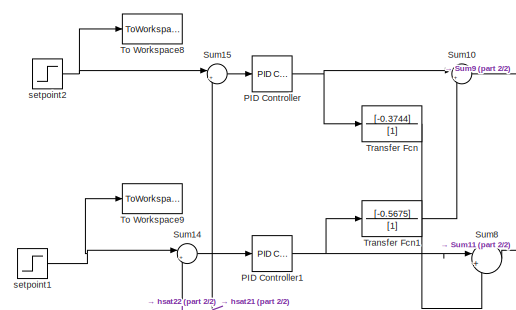
[diagram: root canvas - part 1/2, top left region]
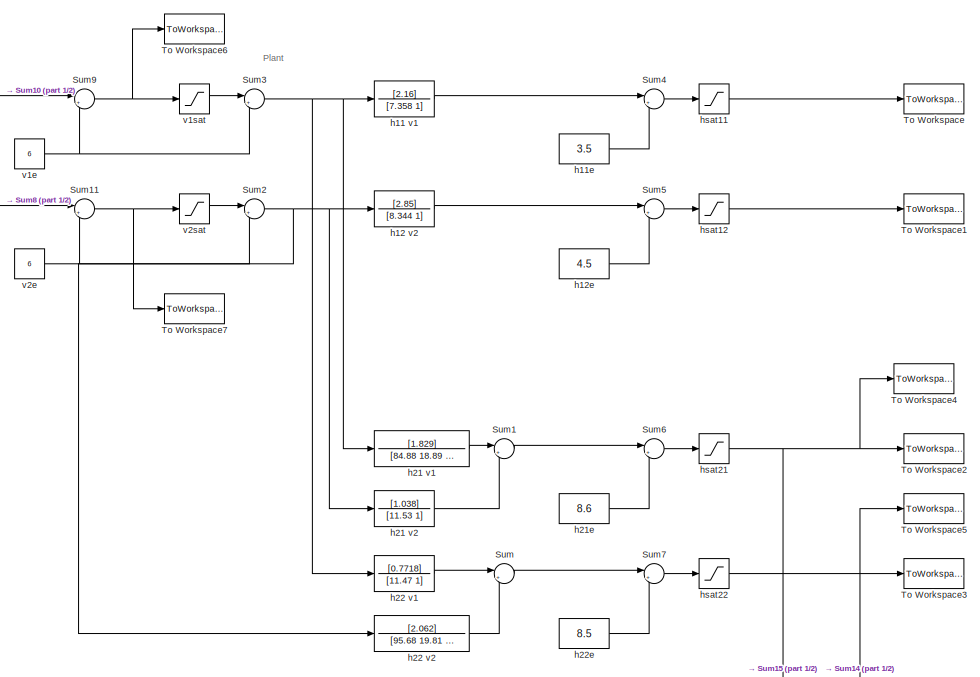
[diagram: root canvas - part 2/2, right side, full height]
MODEL slx_1b8fdc3dee98
KIND model
CONFIG AbsTol = auto
CONFIG FixedStep = auto
CONFIG MaxStep = auto
CONFIG MinStep = auto
CONFIG RelTol = 1e-3
CONFIG SampleTimeConstraint = Unconstrained
CONFIG Solver = VariableStepAuto
CONFIG SolverMode = Auto
CONFIG SolverName = VariableStepAuto
CONFIG StartTime = 0.0
CONFIG StopTime = 800
BLOCK [Reference] PID Controller  REF=simulink/Continuous/PID Controller
  Ports = [1, 1]
  SourceBlock = simulink/Continuous/PID Controller
  SourceType = PID 1dof
BLOCK [Reference] PID Controller1  REF=simulink/Continuous/PID Controller
  Ports = [1, 1]
  SourceBlock = simulink/Continuous/PID Controller
  SourceType = PID 1dof
BLOCK [Sum] Sum
  IconShape = round
  InputSameDT = off
  Inputs = |++
  OutDataTypeStr = Inherit: Inherit via internal rule
  Ports = [2, 1]
  SaturateOnIntegerOverflow = off
BLOCK [Sum] Sum1
  IconShape = round
  InputSameDT = off
  Inputs = |++
  OutDataTypeStr = Inherit: Inherit via internal rule
  Ports = [2, 1]
  SaturateOnIntegerOverflow = off
BLOCK [Sum] Sum10
  IconShape = round
  InputSameDT = off
  Inputs = |++
  OutDataTypeStr = Inherit: Inherit via internal rule
  Ports = [2, 1]
  SaturateOnIntegerOverflow = off
BLOCK [Sum] Sum11
  IconShape = round
  InputSameDT = off
  Inputs = |++
  OutDataTypeStr = Inherit: Inherit via internal rule
  Ports = [2, 1]
  SaturateOnIntegerOverflow = off
BLOCK [Sum] Sum14
  IconShape = round
  InputSameDT = off
  Inputs = |+-
  OutDataTypeStr = Inherit: Inherit via internal rule
  Ports = [2, 1]
  SaturateOnIntegerOverflow = off
BLOCK [Sum] Sum15
  IconShape = round
  InputSameDT = off
  Inputs = |+-
  OutDataTypeStr = Inherit: Inherit via internal rule
  Ports = [2, 1]
  SaturateOnIntegerOverflow = off
BLOCK [Sum] Sum2
  IconShape = round
  InputSameDT = off
  Inputs = |+-
  OutDataTypeStr = Inherit: Inherit via internal rule
  Ports = [2, 1]
  SaturateOnIntegerOverflow = off
BLOCK [Sum] Sum3
  IconShape = round
  InputSameDT = off
  Inputs = |+-
  OutDataTypeStr = Inherit: Inherit via internal rule
  Ports = [2, 1]
  SaturateOnIntegerOverflow = off
BLOCK [Sum] Sum4
  IconShape = round
  InputSameDT = off
  Inputs = |++
  OutDataTypeStr = Inherit: Inherit via internal rule
  Ports = [2, 1]
  SaturateOnIntegerOverflow = off
BLOCK [Sum] Sum5
  IconShape = round
  InputSameDT = off
  Inputs = |++
  OutDataTypeStr = Inherit: Inherit via internal rule
  Ports = [2, 1]
  SaturateOnIntegerOverflow = off
BLOCK [Sum] Sum6
  IconShape = round
  InputSameDT = off
  Inputs = |++
  OutDataTypeStr = Inherit: Inherit via internal rule
  Ports = [2, 1]
  SaturateOnIntegerOverflow = off
BLOCK [Sum] Sum7
  IconShape = round
  InputSameDT = off
  Inputs = |++
  OutDataTypeStr = Inherit: Inherit via internal rule
  Ports = [2, 1]
  SaturateOnIntegerOverflow = off
BLOCK [Sum] Sum8
  IconShape = round
  InputSameDT = off
  Inputs = |++
  OutDataTypeStr = Inherit: Inherit via internal rule
  Ports = [2, 1]
  SaturateOnIntegerOverflow = off
BLOCK [Sum] Sum9
  IconShape = round
  InputSameDT = off
  Inputs = |++
  OutDataTypeStr = Inherit: Inherit via internal rule
  Ports = [2, 1]
  SaturateOnIntegerOverflow = off
BLOCK [ToWorkspace] To Workspace
  FixptAsFi = on
  MaxDataPoints = inf
  Ports = [1]
  SampleTime = -1
  Save2DSignal = 3-D array (concatenate along third dimension)
  SaveFormat = Timeseries
  VariableName = tank11
BLOCK [ToWorkspace] To Workspace1
  FixptAsFi = on
  MaxDataPoints = inf
  Ports = [1]
  SampleTime = -1
  Save2DSignal = 3-D array (concatenate along third dimension)
  SaveFormat = Timeseries
  VariableName = tank12
BLOCK [ToWorkspace] To Workspace2
  FixptAsFi = on
  MaxDataPoints = inf
  Ports = [1]
  SampleTime = -1
  Save2DSignal = 3-D array (concatenate along third dimension)
  SaveFormat = Timeseries
  VariableName = tank21
BLOCK [ToWorkspace] To Workspace3
  FixptAsFi = on
  MaxDataPoints = inf
  Ports = [1]
  SampleTime = -1
  Save2DSignal = 3-D array (concatenate along third dimension)
  SaveFormat = Timeseries
  VariableName = tank22
BLOCK [ToWorkspace] To Workspace4
  FixptAsFi = on
  MaxDataPoints = inf
  Ports = [1]
  SampleTime = -1
  Save2DSignal = 3-D array (concatenate along third dimension)
  SaveFormat = Timeseries
  VariableName = output1
BLOCK [ToWorkspace] To Workspace5
  FixptAsFi = on
  MaxDataPoints = inf
  Ports = [1]
  SampleTime = -1
  Save2DSignal = 3-D array (concatenate along third dimension)
  SaveFormat = Timeseries
  VariableName = output2
BLOCK [ToWorkspace] To Workspace6
  FixptAsFi = on
  MaxDataPoints = inf
  Ports = [1]
  SampleTime = -1
  Save2DSignal = 3-D array (concatenate along third dimension)
  SaveFormat = Timeseries
  VariableName = voltage1
BLOCK [ToWorkspace] To Workspace7
  FixptAsFi = on
  MaxDataPoints = inf
  Ports = [1]
  SampleTime = -1
  Save2DSignal = 3-D array (concatenate along third dimension)
  SaveFormat = Timeseries
  VariableName = voltage2
BLOCK [ToWorkspace] To Workspace8
  FixptAsFi = on
  MaxDataPoints = inf
  Ports = [1]
  SampleTime = -1
  Save2DSignal = 3-D array (concatenate along third dimension)
  SaveFormat = Timeseries
  VariableName = setpoint1
BLOCK [ToWorkspace] To Workspace9
  FixptAsFi = on
  MaxDataPoints = inf
  Ports = [1]
  SampleTime = -1
  Save2DSignal = 3-D array (concatenate along third dimension)
  SaveFormat = Timeseries
  VariableName = setpoint2
BLOCK [TransferFcn] Transfer Fcn
  Denominator = [1]
  Numerator = [-0.3744]
BLOCK [TransferFcn] Transfer Fcn1
  Denominator = [1]
  Numerator = [-0.5675]
BLOCK [TransferFcn] h11 v1
  Denominator = [7.358 1]
  Numerator = [2.16]
BLOCK [Constant] h11e
  Value = 3.5
BLOCK [TransferFcn] h12 v2
  Denominator = [8.344 1]
  Numerator = [2.85]
BLOCK [Constant] h12e
  Value = 4.5
BLOCK [TransferFcn] h21 v1
  Denominator = [84.88 18.89 1]
  Numerator = [1.829]
BLOCK [TransferFcn] h21 v2
  Denominator = [11.53 1]
  Numerator = [1.038]
BLOCK [Constant] h21e
  Value = 8.6
BLOCK [TransferFcn] h22 v1
  Denominator = [11.47 1]
  Numerator = [0.7718]
BLOCK [TransferFcn] h22 v2
  Denominator = [95.68 19.81 1]
  Numerator = [2.062]
BLOCK [Constant] h22e
  Value = 8.5
BLOCK [Saturate] hsat11
  InputPortMap = u0
  LowerLimit = 0
  Ports = [1, 1]
  UpperLimit = 30
BLOCK [Saturate] hsat12
  InputPortMap = u0
  LowerLimit = 0
  Ports = [1, 1]
  UpperLimit = 30
BLOCK [Saturate] hsat21
  InputPortMap = u0
  LowerLimit = 0
  Ports = [1, 1]
  UpperLimit = 30
BLOCK [Saturate] hsat22
  InputPortMap = u0
  LowerLimit = 0
  Ports = [1, 1]
  UpperLimit = 30
BLOCK [Step] setpoint1
  After = 12
  Before = 8.5
  SampleTime = 0
  Time = 30
BLOCK [Step] setpoint2
  After = 15
  Before = 8.5
  SampleTime = 0
  Time = 30
BLOCK [Constant] v1e
  Value = 6
BLOCK [Saturate] v1sat
  InputPortMap = u0
  LowerLimit = 0
  Ports = [1, 1]
  UpperLimit = 22
BLOCK [Constant] v2e
  Value = 6
BLOCK [Saturate] v2sat
  InputPortMap = u0
  LowerLimit = 0
  Ports = [1, 1]
  UpperLimit = 22
ANNOTATION (root): Plant
NET PID Controller1:1 -> Sum8:1, Transfer Fcn1:1
NET PID Controller:1 -> Sum10:1, Transfer Fcn:1
LINE Sum10:1 -> Sum9:1
NET Sum11:1 -> To Workspace7:1, v2sat:1
LINE Sum14:1 -> PID Controller1:1
LINE Sum15:1 -> PID Controller:1
LINE Sum1:1 -> Sum6:1
NET Sum2:1 -> h12 v2:1, h21 v2:1, h22 v2:1
NET Sum3:1 -> h11 v1:1, h21 v1:1, h22 v1:1
LINE Sum4:1 -> hsat11:1
LINE Sum5:1 -> hsat12:1
LINE Sum6:1 -> hsat21:1
LINE Sum7:1 -> hsat22:1
LINE Sum8:1 -> Sum11:1
NET Sum9:1 -> To Workspace6:1, v1sat:1
LINE Sum:1 -> Sum7:1
LINE Transfer Fcn1:1 -> Sum10:2
LINE Transfer Fcn:1 -> Sum8:2
LINE h11 v1:1 -> Sum4:1
LINE h11e:1 -> Sum4:2
LINE h12 v2:1 -> Sum5:1
LINE h12e:1 -> Sum5:2
LINE h21 v1:1 -> Sum1:1
LINE h21 v2:1 -> Sum1:2
LINE h21e:1 -> Sum6:2
LINE h22 v1:1 -> Sum:1
LINE h22 v2:1 -> Sum:2
LINE h22e:1 -> Sum7:2
LINE hsat11:1 -> To Workspace:1
LINE hsat12:1 -> To Workspace1:1
NET hsat21:1 -> Sum15:2, To Workspace2:1, To Workspace4:1
NET hsat22:1 -> Sum14:2, To Workspace3:1, To Workspace5:1
NET setpoint1:1 -> Sum14:1, To Workspace9:1
NET setpoint2:1 -> Sum15:1, To Workspace8:1
NET v1e:1 -> Sum3:2, Sum9:2
LINE v1sat:1 -> Sum3:1
NET v2e:1 -> Sum11:2, Sum2:2
LINE v2sat:1 -> Sum2:1
note: NET lines group one-source signal fan-out (src -> all destinations, sorted); 1:1 wires keep LINE
